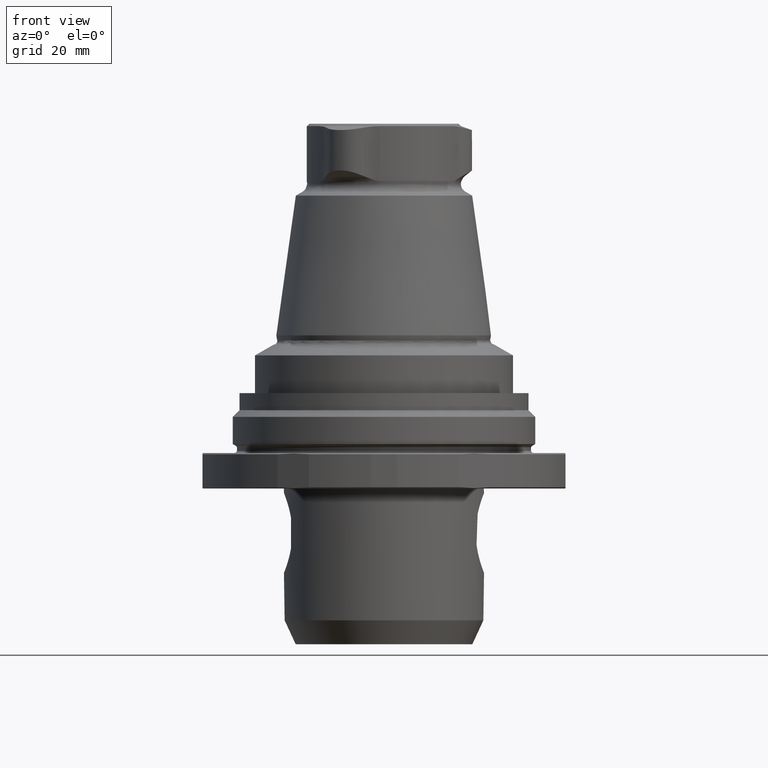
[diagram: clean part render]
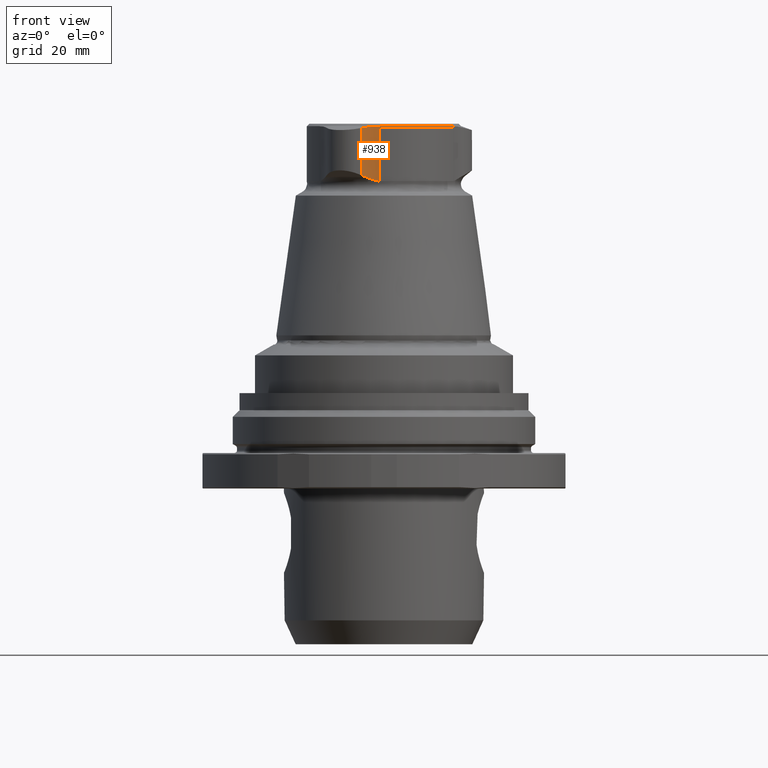
[diagram: same view with one face highlighted and labeled with its STEP entity id]
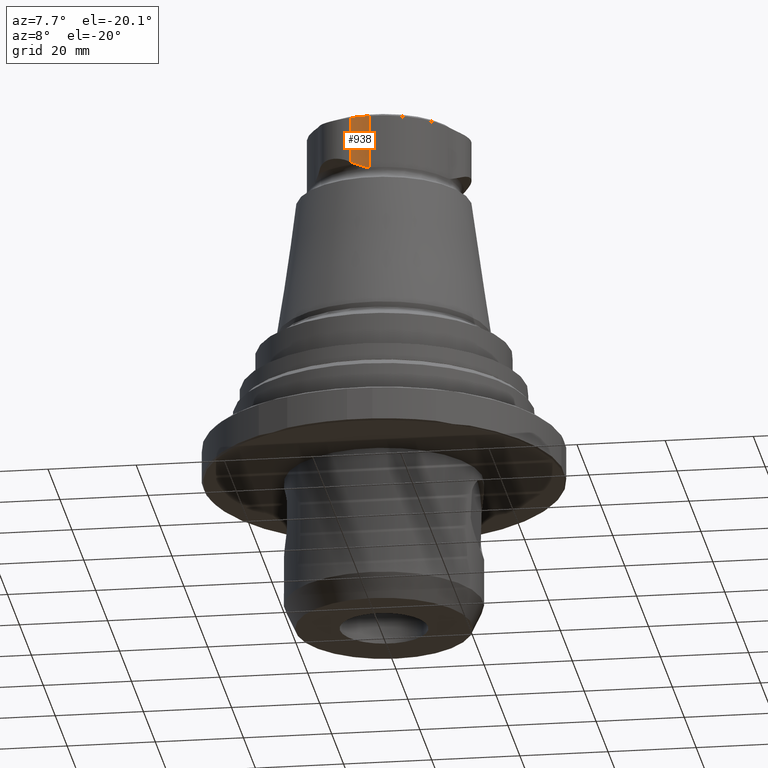
[diagram: same view with one face highlighted and labeled with its STEP entity id]
A machine part, front view. The second image highlights one B-rep face of the part: STEP entity #938.
A second angle (auxiliary view) of the same face is appended — the face is thin or edge-on in the first view.
In plain terms, the highlighted cylindrical surface (partial cylindrical patch) has radius 13 mm, axis along (0, 0, 1).
Its self-contained STEP definition (entity closure, byte-faithful):
#115=LINE('',#1475,#145);
#122=LINE('',#1592,#152);
#145=VECTOR('',#1164,1000.);
#152=VECTOR('',#1191,1000.);
#226=ORIENTED_EDGE('',*,*,#476,.T.);
#227=ORIENTED_EDGE('',*,*,#468,.F.);
#228=ORIENTED_EDGE('',*,*,#450,.F.);
#229=ORIENTED_EDGE('',*,*,#475,.F.);
#230=ORIENTED_EDGE('',*,*,#477,.F.);
#450=EDGE_CURVE('',#581,#582,#115,.T.);
#468=EDGE_CURVE('',#582,#597,#676,.T.);
#475=EDGE_CURVE('',#601,#581,#680,.T.);
#476=EDGE_CURVE('',#602,#597,#122,.T.);
#477=EDGE_CURVE('',#602,#601,#681,.T.);
#581=VERTEX_POINT('',#1476);
#582=VERTEX_POINT('',#1477);
#597=VERTEX_POINT('',#1564);
#601=VERTEX_POINT('',#1586);
#602=VERTEX_POINT('',#1593);
#676=B_SPLINE_CURVE_WITH_KNOTS('',3,(#1560,#1561,#1562,#1563),
 .UNSPECIFIED.,.F.,.F.,(4,4),(2.07305202996264E-7,0.00414680608843627),
 .UNSPECIFIED.);
#680=B_SPLINE_CURVE_WITH_KNOTS('',3,(#1587,#1588,#1589,#1590),
 .UNSPECIFIED.,.F.,.F.,(4,4),(6.37010970287748E-7,0.00116467705633273),
 .UNSPECIFIED.);
#681=B_SPLINE_CURVE_WITH_KNOTS('',3,(#1594,#1595,#1596,#1597,#1598),
 .UNSPECIFIED.,.F.,.F.,(4,1,4),(1.97137655947821E-7,0.00159333802635267,
0.00318647891504939),.UNSPECIFIED.);
#726=EDGE_LOOP('',(#226,#227,#228,#229,#230));
#821=FACE_BOUND('',#726,.T.);
#901=CYLINDRICAL_SURFACE('',#1030,13.);
#938=ADVANCED_FACE('',(#821),#901,.F.);
#1030=AXIS2_PLACEMENT_3D('',#1591,#1189,#1190);
#1164=DIRECTION('',(0.,0.,1.));
#1189=DIRECTION('',(0.,0.,1.));
#1190=DIRECTION('',(1.,-6.12303176911189E-17,0.));
#1191=DIRECTION('',(0.,0.,1.));
#1475=CARTESIAN_POINT('',(-5.07416735422223,-17.7797014542112,-46.0210065492642));
#1476=CARTESIAN_POINT('',(-5.07416735422223,-17.7797014542112,61.4315662257756));
#1477=CARTESIAN_POINT('',(-5.07416735422223,-17.7797014542112,72.0597450497322));
#1560=CARTESIAN_POINT('',(-5.07416735422223,-17.7797014542112,72.0597450497322));
#1561=CARTESIAN_POINT('',(-3.74067322401379,-17.4206835496818,72.3185968762582));
#1562=CARTESIAN_POINT('',(-2.37385188356233,-17.2744854761489,72.4636029765734));
#1563=CARTESIAN_POINT('',(-0.96940695405181,-17.3529435588731,72.4636029765734));
#1564=CARTESIAN_POINT('',(-0.969406954051809,-17.3529435588731,72.4636029765734));
#1586=CARTESIAN_POINT('',(-4.0132905390536,-17.5411750528516,61.0160728241915));
#1587=CARTESIAN_POINT('',(-4.01329053905359,-17.5411750528516,61.0160728241915));
#1588=CARTESIAN_POINT('',(-4.37651494004062,-17.6070184382754,61.1379056571261));
#1589=CARTESIAN_POINT('',(-4.72965815949103,-17.6869489130627,61.2773931257947));
#1590=CARTESIAN_POINT('',(-5.07416735422223,-17.7797014542112,61.4315662257756));
#1591=CARTESIAN_POINT('',(-1.69450996916535,-30.3327057145319,-46.0210065492642));
#1592=CARTESIAN_POINT('',(-0.969406954051809,-17.3529435588731,-46.0210065492642));
#1593=CARTESIAN_POINT('',(-0.969406954051809,-17.3529435588731,60.1084837377934));
#1594=CARTESIAN_POINT('',(-0.96940695405181,-17.3529435588731,60.1084837377934));
#1595=CARTESIAN_POINT('',(-1.50816065140855,-17.3228465566575,60.1084837377934));
#1596=CARTESIAN_POINT('',(-2.5276528809224,-17.3310864051679,60.4643411911177));
#1597=CARTESIAN_POINT('',(-3.51330235117727,-17.4505398563382,60.8483666425664));
#1598=CARTESIAN_POINT('',(-4.0132905390535,-17.541175052851,61.016072824192));